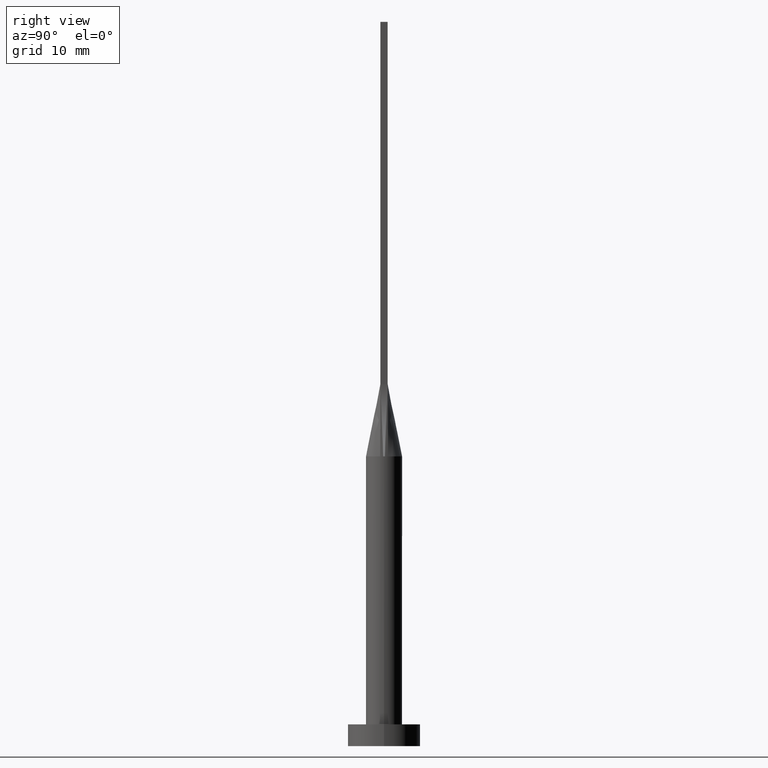
[diagram: clean part render]
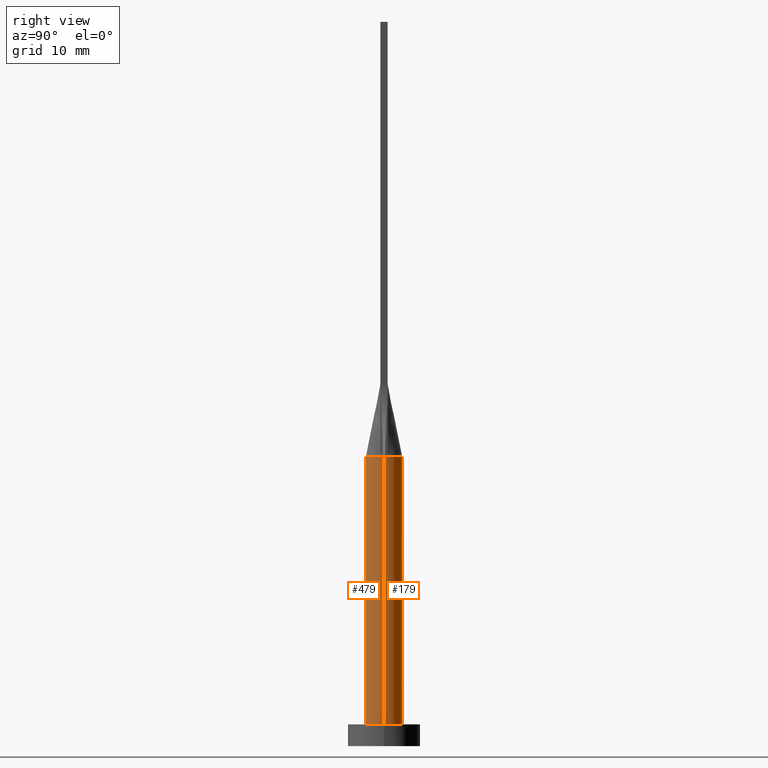
[diagram: same view with one multi-face feature highlighted, each face labeled with its STEP entity id]
A machine part, right view. The highlighted faces form ONE feature: a constant-radius fillet chain: 2 tangent blend faces with common blend radius 2.5 mm. The faces share edges in the B-rep.
Their STEP definitions:
[1] entity #479 (Cylinder):
#5 = EDGE_CURVE ( 'NONE', #426, #436, #99, .T. ) ;
#10 = CIRCLE ( 'NONE', #514, 2.500000000000000000 ) ;
#28 = LINE ( 'NONE', #351, #153 ) ;
#31 = EDGE_CURVE ( 'NONE', #110, #121, #532, .T. ) ;
#33 = EDGE_LOOP ( 'NONE', ( #281, #237, #328, #199, #375, #513 ) ) ;
#50 = CARTESIAN_POINT ( 'NONE',  ( 0.000000000000000000, 0.000000000000000000, 40.00000000000000000 ) ) ;
#62 = VERTEX_POINT ( 'NONE', #503 ) ;
#64 = CARTESIAN_POINT ( 'NONE',  ( 2.440706242928429415, -0.5423794613208688942, 40.00000000000000000 ) ) ;
#68 = CARTESIAN_POINT ( 'NONE',  ( 0.000000000000000000, 0.000000000000000000, 40.00000000000000000 ) ) ;
#80 = CIRCLE ( 'NONE', #258, 2.500000000000000000 ) ;
#88 = CARTESIAN_POINT ( 'NONE',  ( -2.500000000000000000, 0.000000000000000000, 3.000000000000000000 ) ) ;
#99 = CIRCLE ( 'NONE', #122, 2.500000000000000000 ) ;
#110 = VERTEX_POINT ( 'NONE', #64 ) ;
#119 = CYLINDRICAL_SURFACE ( 'NONE', #146, 2.500000000000000000 ) ;
#121 = VERTEX_POINT ( 'NONE', #566 ) ;
#122 = AXIS2_PLACEMENT_3D ( 'NONE', #307, #576, #133 ) ;
#133 = DIRECTION ( 'NONE',  ( 1.000000000000000000, 0.000000000000000000, 0.000000000000000000 ) ) ;
#141 = DIRECTION ( 'NONE',  ( 1.000000000000000000, -4.440892098500626162E-15, 0.000000000000000000 ) ) ;
#146 = AXIS2_PLACEMENT_3D ( 'NONE', #68, #339, #159 ) ;
#153 = VECTOR ( 'NONE', #306, 1000.000000000000000 ) ;
#159 = DIRECTION ( 'NONE',  ( -1.000000000000000000, 0.000000000000000000, 0.000000000000000000 ) ) ;
#163 = EDGE_CURVE ( 'NONE', #121, #436, #28, .T. ) ;
#199 = ORIENTED_EDGE ( 'NONE', *, *, #508, .F. ) ;
#233 = EDGE_CURVE ( 'NONE', #62, #426, #521, .T. ) ;
#237 = ORIENTED_EDGE ( 'NONE', *, *, #31, .F. ) ;
#239 = DIRECTION ( 'NONE',  ( -0.000000000000000000, -0.000000000000000000, -1.000000000000000000 ) ) ;
#258 = AXIS2_PLACEMENT_3D ( 'NONE', #50, #579, #493 ) ;
#279 = CARTESIAN_POINT ( 'NONE',  ( -2.500000000000000000, 0.000000000000000000, 40.00000000000000000 ) ) ;
#281 = ORIENTED_EDGE ( 'NONE', *, *, #163, .F. ) ;
#295 = FACE_OUTER_BOUND ( 'NONE', #33, .T. ) ;
#297 = VECTOR ( 'NONE', #239, 1000.000000000000000 ) ;
#306 = DIRECTION ( 'NONE',  ( -0.000000000000000000, -0.000000000000000000, -1.000000000000000000 ) ) ;
#307 = CARTESIAN_POINT ( 'NONE',  ( 0.000000000000000000, 0.000000000000000000, 3.000000000000000000 ) ) ;
#328 = ORIENTED_EDGE ( 'NONE', *, *, #373, .F. ) ;
#339 = DIRECTION ( 'NONE',  ( -0.000000000000000000, -0.000000000000000000, -1.000000000000000000 ) ) ;
#351 = CARTESIAN_POINT ( 'NONE',  ( 2.500000000000000000, 3.061616997868383141E-16, 40.00000000000000000 ) ) ;
#358 = CARTESIAN_POINT ( 'NONE',  ( 2.500000000000000000, 3.061616997868383141E-16, 3.000000000000000000 ) ) ;
#363 = DIRECTION ( 'NONE',  ( 0.000000000000000000, 0.000000000000000000, 1.000000000000000000 ) ) ;
#373 = EDGE_CURVE ( 'NONE', #527, #110, #80, .T. ) ;
#375 = ORIENTED_EDGE ( 'NONE', *, *, #233, .T. ) ;
#403 = CARTESIAN_POINT ( 'NONE',  ( 0.000000000000000000, 0.000000000000000000, 40.00000000000000000 ) ) ;
#415 = AXIS2_PLACEMENT_3D ( 'NONE', #403, #363, #141 ) ;
#426 = VERTEX_POINT ( 'NONE', #88 ) ;
#436 = VERTEX_POINT ( 'NONE', #358 ) ;
#460 = CARTESIAN_POINT ( 'NONE',  ( -2.440688158044365785, -0.5423755258804862089, 40.00000000000000000 ) ) ;
#469 = CARTESIAN_POINT ( 'NONE',  ( 0.000000000000000000, 0.000000000000000000, 40.00000000000000000 ) ) ;
#479 = ADVANCED_FACE ( 'NONE', ( #295 ), #119, .T. ) ;
#493 = DIRECTION ( 'NONE',  ( 1.000000000000000000, 0.000000000000000000, 0.000000000000000000 ) ) ;
#503 = CARTESIAN_POINT ( 'NONE',  ( -2.499645589935823420, -1.700711608024726496E-15, 40.00000000000000000 ) ) ;
#505 = DIRECTION ( 'NONE',  ( 1.000000000000000000, 0.000000000000000000, 0.000000000000000000 ) ) ;
#508 = EDGE_CURVE ( 'NONE', #62, #527, #10, .T. ) ;
#513 = ORIENTED_EDGE ( 'NONE', *, *, #5, .T. ) ;
#514 = AXIS2_PLACEMENT_3D ( 'NONE', #469, #552, #505 ) ;
#521 = LINE ( 'NONE', #279, #297 ) ;
#527 = VERTEX_POINT ( 'NONE', #460 ) ;
#532 = CIRCLE ( 'NONE', #415, 2.500000000000000000 ) ;
#552 = DIRECTION ( 'NONE',  ( 0.000000000000000000, 0.000000000000000000, 1.000000000000000000 ) ) ;
#566 = CARTESIAN_POINT ( 'NONE',  ( 2.499645589935823420, 5.999196936655281332E-16, 40.00000000000000000 ) ) ;
#576 = DIRECTION ( 'NONE',  ( 0.000000000000000000, 0.000000000000000000, 1.000000000000000000 ) ) ;
#579 = DIRECTION ( 'NONE',  ( 0.000000000000000000, 0.000000000000000000, 1.000000000000000000 ) ) ;
[2] entity #179 (Cylinder):
#21 = EDGE_LOOP ( 'NONE', ( #367, #250, #253, #161, #186, #300 ) ) ;
#24 = CARTESIAN_POINT ( 'NONE',  ( -1.260416918790968843, 2.182794756967428196, 40.00000000000000711 ) ) ;
#28 = LINE ( 'NONE', #351, #153 ) ;
#35 = CARTESIAN_POINT ( 'NONE',  ( 0.000000000000000000, 0.000000000000000000, 40.00000000000000000 ) ) ;
#37 = AXIS2_PLACEMENT_3D ( 'NONE', #82, #213, #391 ) ;
#54 = CARTESIAN_POINT ( 'NONE',  ( 0.000000000000000000, 0.000000000000000000, 40.00000000000000000 ) ) ;
#55 = CARTESIAN_POINT ( 'NONE',  ( 0.000000000000000000, 0.000000000000000000, 3.000000000000000000 ) ) ;
#62 = VERTEX_POINT ( 'NONE', #503 ) ;
#82 = CARTESIAN_POINT ( 'NONE',  ( 0.000000000000000000, 0.000000000000000000, 40.00000000000000000 ) ) ;
#88 = CARTESIAN_POINT ( 'NONE',  ( -2.500000000000000000, 0.000000000000000000, 3.000000000000000000 ) ) ;
#96 = AXIS2_PLACEMENT_3D ( 'NONE', #35, #273, #174 ) ;
#98 = CARTESIAN_POINT ( 'NONE',  ( -2.440694335308545071, 0.5423767520433731004, 40.00000000000000000 ) ) ;
#121 = VERTEX_POINT ( 'NONE', #566 ) ;
#126 = CARTESIAN_POINT ( 'NONE',  ( -2.396350003401058082, 0.7408555563113466969, 40.00000000000000000 ) ) ;
#128 = FACE_OUTER_BOUND ( 'NONE', #21, .T. ) ;
#153 = VECTOR ( 'NONE', #306, 1000.000000000000000 ) ;
#154 = DIRECTION ( 'NONE',  ( 0.000000000000000000, 0.000000000000000000, 1.000000000000000000 ) ) ;
#161 = ORIENTED_EDGE ( 'NONE', *, *, #233, .F. ) ;
#163 = EDGE_CURVE ( 'NONE', #121, #436, #28, .T. ) ;
#169 = AXIS2_PLACEMENT_3D ( 'NONE', #54, #421, #243 ) ;
#174 = DIRECTION ( 'NONE',  ( 1.000000000000000000, 0.000000000000000000, 0.000000000000000000 ) ) ;
#179 = ADVANCED_FACE ( 'NONE', ( #128 ), #483, .T. ) ;
#184 = CARTESIAN_POINT ( 'NONE',  ( 2.440676307083422980, 0.5423728264510006003, 40.00000000000000000 ) ) ;
#186 = ORIENTED_EDGE ( 'NONE', *, *, #434, .F. ) ;
#188 = CARTESIAN_POINT ( 'NONE',  ( 2.093723281432890104, 1.388001797188529007, 39.99999999999999289 ) ) ;
#207 = CARTESIAN_POINT ( 'NONE',  ( -0.3342381693191151526, 2.499999999999999556, 40.00000000000000000 ) ) ;
#213 = DIRECTION ( 'NONE',  ( -0.000000000000000000, -0.000000000000000000, -1.000000000000000000 ) ) ;
#233 = EDGE_CURVE ( 'NONE', #62, #426, #521, .T. ) ;
#239 = DIRECTION ( 'NONE',  ( -0.000000000000000000, -0.000000000000000000, -1.000000000000000000 ) ) ;
#243 = DIRECTION ( 'NONE',  ( 1.000000000000000000, 0.000000000000000000, 0.000000000000000000 ) ) ;
#248 = CARTESIAN_POINT ( 'NONE',  ( 2.440676307083422980, 0.5423728264510006003, 40.00000000000000000 ) ) ;
#249 = CIRCLE ( 'NONE', #96, 2.500000000000000000 ) ;
#250 = ORIENTED_EDGE ( 'NONE', *, *, #163, .T. ) ;
#253 = ORIENTED_EDGE ( 'NONE', *, *, #261, .T. ) ;
#254 = CARTESIAN_POINT ( 'NONE',  ( 1.260416918790968843, 2.182794756967427752, 40.00000000000000000 ) ) ;
#261 = EDGE_CURVE ( 'NONE', #436, #426, #581, .T. ) ;
#273 = DIRECTION ( 'NONE',  ( 0.000000000000000000, 0.000000000000000000, 1.000000000000000000 ) ) ;
#279 = CARTESIAN_POINT ( 'NONE',  ( -2.500000000000000000, 0.000000000000000000, 40.00000000000000000 ) ) ;
#294 = VERTEX_POINT ( 'NONE', #98 ) ;
#297 = VECTOR ( 'NONE', #239, 1000.000000000000000 ) ;
#300 = ORIENTED_EDGE ( 'NONE', *, *, #310, .F. ) ;
#306 = DIRECTION ( 'NONE',  ( -0.000000000000000000, -0.000000000000000000, -1.000000000000000000 ) ) ;
#310 = EDGE_CURVE ( 'NONE', #491, #294, #478, .T. ) ;
#325 = CARTESIAN_POINT ( 'NONE',  ( 2.323660390030918954, 0.9543733860570833283, 40.00000000000000711 ) ) ;
#326 = CIRCLE ( 'NONE', #169, 2.500000000000000000 ) ;
#351 = CARTESIAN_POINT ( 'NONE',  ( 2.500000000000000000, 3.061616997868383141E-16, 40.00000000000000000 ) ) ;
#358 = CARTESIAN_POINT ( 'NONE',  ( 2.500000000000000000, 3.061616997868383141E-16, 3.000000000000000000 ) ) ;
#367 = ORIENTED_EDGE ( 'NONE', *, *, #544, .F. ) ;
#385 = CARTESIAN_POINT ( 'NONE',  ( -0.6674771052374470770, 2.430579781493059421, 40.00000000000000000 ) ) ;
#391 = DIRECTION ( 'NONE',  ( -1.000000000000000000, 0.000000000000000000, 0.000000000000000000 ) ) ;
#421 = DIRECTION ( 'NONE',  ( 0.000000000000000000, 0.000000000000000000, 1.000000000000000000 ) ) ;
#426 = VERTEX_POINT ( 'NONE', #88 ) ;
#427 = CARTESIAN_POINT ( 'NONE',  ( 0.6674771052374470770, 2.430579781493058977, 40.00000000000000000 ) ) ;
#429 = CARTESIAN_POINT ( 'NONE',  ( -1.935644909179609297, 1.608159499248285718, 40.00000000000000000 ) ) ;
#434 = EDGE_CURVE ( 'NONE', #294, #62, #249, .T. ) ;
#436 = VERTEX_POINT ( 'NONE', #358 ) ;
#440 = CARTESIAN_POINT ( 'NONE',  ( -2.323660390030918510, 0.9543733860570832173, 40.00000000000000000 ) ) ;
#457 = CARTESIAN_POINT ( 'NONE',  ( 1.935644909179608186, 1.608159499248285051, 39.99999999999998579 ) ) ;
#478 = B_SPLINE_CURVE_WITH_KNOTS ( 'NONE', 3,
 ( #184, #541, #325, #188, #457, #545, #254, #427, #577, #207, #385, #24, #573, #429, #564, #440, #126, #489 ),
 .UNSPECIFIED., .F., .F.,
 ( 4, 2, 2, 2, 2, 2, 2, 2, 4 ),
 ( 0.000000000000000000, 0.1249999999999999722, 0.2500000000000000000, 0.3750000000000000000, 0.5000000000000001110, 0.6250000000000001110, 0.7500000000000000000, 0.8750000000000000000, 1.000000000000000000 ),
 .UNSPECIFIED. ) ;
#483 = CYLINDRICAL_SURFACE ( 'NONE', #37, 2.500000000000000000 ) ;
#489 = CARTESIAN_POINT ( 'NONE',  ( -2.440694335308545071, 0.5423767520433731004, 40.00000000000000000 ) ) ;
#491 = VERTEX_POINT ( 'NONE', #248 ) ;
#503 = CARTESIAN_POINT ( 'NONE',  ( -2.499645589935823420, -1.700711608024726496E-15, 40.00000000000000000 ) ) ;
#506 = DIRECTION ( 'NONE',  ( 1.000000000000000000, 0.000000000000000000, 0.000000000000000000 ) ) ;
#521 = LINE ( 'NONE', #279, #297 ) ;
#541 = CARTESIAN_POINT ( 'NONE',  ( 2.396350003401058526, 0.7408555563113465858, 40.00000000000000000 ) ) ;
#544 = EDGE_CURVE ( 'NONE', #121, #491, #326, .T. ) ;
#545 = CARTESIAN_POINT ( 'NONE',  ( 1.519400572660313031, 2.006070808634367708, 39.99999999999998579 ) ) ;
#564 = CARTESIAN_POINT ( 'NONE',  ( -2.093723281432891437, 1.388001797188529451, 39.99999999999999289 ) ) ;
#566 = CARTESIAN_POINT ( 'NONE',  ( 2.499645589935823420, 5.999196936655281332E-16, 40.00000000000000000 ) ) ;
#567 = AXIS2_PLACEMENT_3D ( 'NONE', #55, #154, #506 ) ;
#573 = CARTESIAN_POINT ( 'NONE',  ( -1.519400572660313253, 2.006070808634367264, 40.00000000000000711 ) ) ;
#577 = CARTESIAN_POINT ( 'NONE',  ( 0.3342381693191150416, 2.499999999999999556, 39.99999999999999289 ) ) ;
#581 = CIRCLE ( 'NONE', #567, 2.500000000000000000 ) ;